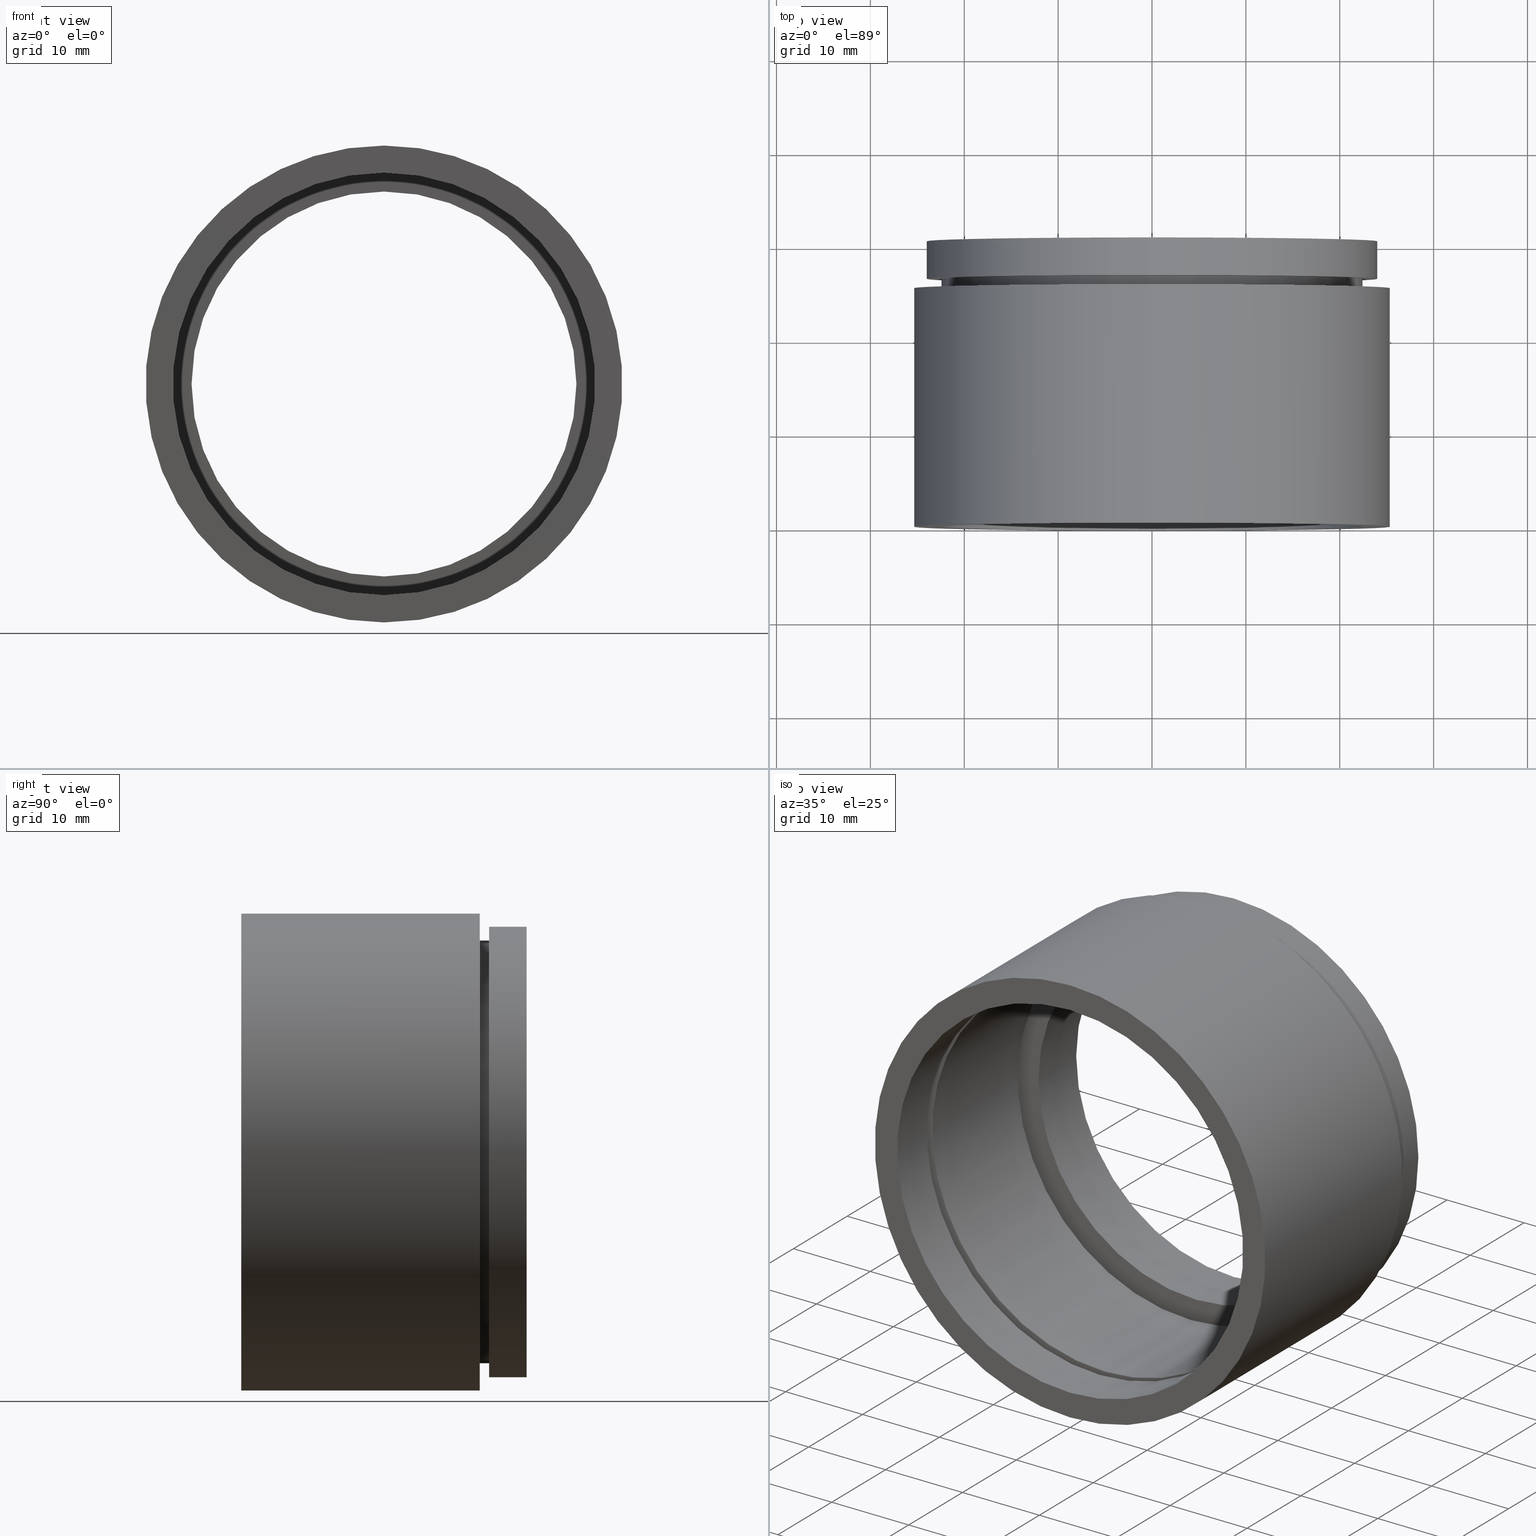
[diagram: canonical four-view strip — front | top / right | iso, engineering-drawing reading convention]
A machine part, canonical four-view strip (front | top / right | iso — engineering-drawing reading convention). The complete STEP part file that produces these views, byte-faithful:
ISO-10303-21;
HEADER;
FILE_DESCRIPTION (( 'STEP AP214' ),
    '1' );
FILE_NAME ('503014.STEP',
    '2019-09-04T09:28:39',
    ( '' ),
    ( '' ),
    'SwSTEP 2.0',
    'SolidWorks 2016',
    '' );
FILE_SCHEMA (( 'AUTOMOTIVE_DESIGN' ));
ENDSEC;

DATA;
#1 = FACE_OUTER_BOUND ( 'NONE', #154, .T. ) ;
#2 = EDGE_LOOP ( 'NONE', ( #57, #266, #693, #347 ) ) ;
#3 = PLANE ( 'NONE',  #713 ) ;
#4 = EDGE_LOOP ( 'NONE', ( #195, #783, #733, #254 ) ) ;
#5 = DIRECTION ( 'NONE',  ( -0.0000000000000000000, 1.000000000000000000, -0.0000000000000000000 ) ) ;
#6 = SURFACE_STYLE_FILL_AREA ( #567 ) ;
#7 = ORIENTED_EDGE ( 'NONE', *, *, #262, .F. ) ;
#8 = VERTEX_POINT ( 'NONE', #685 ) ;
#9 = DIRECTION ( 'NONE',  ( -0.0000000000000000000, 1.000000000000000000, 0.0000000000000000000 ) ) ;
#10 = CARTESIAN_POINT ( 'NONE',  ( 0.0000000000000000000, 23.39999999999997700, 20.50000000000001800 ) ) ;
#11 = CARTESIAN_POINT ( 'NONE',  ( 2.755455298081547100E-015, 161.3761669434274500, -22.50000000000002100 ) ) ;
#12 = AXIS2_PLACEMENT_3D ( 'NONE', #731, #175, #245 ) ;
#13 = EDGE_CURVE ( 'NONE', #367, #162, #784, .T. ) ;
#14 = CARTESIAN_POINT ( 'NONE',  ( 0.0000000000000000000, -2.775557561562891400E-014, 25.40000000000002000 ) ) ;
#15 = DIRECTION ( 'NONE',  ( 0.0000000000000000000, 0.0000000000000000000, 1.000000000000000000 ) ) ;
#16 = UNCERTAINTY_MEASURE_WITH_UNIT (LENGTH_MEASURE( 1.000000000000000100E-005 ), #429, 'distance_accuracy_value', 'NONE');
#17 = SURFACE_STYLE_USAGE ( .BOTH. , #778 ) ;
#18 = LINE ( 'NONE', #364, #501 ) ;
#19 = ORIENTED_EDGE ( 'NONE', *, *, #787, .F. ) ;
#20 = CARTESIAN_POINT ( 'NONE',  ( 22.50000000000002100, 22.39999999999997400, 0.0000000000000000000 ) ) ;
#21 = CIRCLE ( 'NONE', #321, 24.00000000000001400 ) ;
#22 = VERTEX_POINT ( 'NONE', #611 ) ;
#23 = ORIENTED_EDGE ( 'NONE', *, *, #534, .F. ) ;
#24 = CYLINDRICAL_SURFACE ( 'NONE', #412, 22.49999999999989700 ) ;
#25 = FILL_AREA_STYLE ('',( #461 ) ) ;
#26 = AXIS2_PLACEMENT_3D ( 'NONE', #234, #741, #426 ) ;
#27 = DIRECTION ( 'NONE',  ( 0.0000000000000000000, 0.0000000000000000000, 1.000000000000000000 ) ) ;
#28 = CARTESIAN_POINT ( 'NONE',  ( 2.755455298081547100E-015, 22.39999999999997700, -22.50000000000002100 ) ) ;
#29 = ORIENTED_EDGE ( 'NONE', *, *, #565, .T. ) ;
#30 = CARTESIAN_POINT ( 'NONE',  ( 0.0000000000000000000, 30.39999999999998400, 0.0000000000000000000 ) ) ;
#31 = FACE_OUTER_BOUND ( 'NONE', #300, .T. ) ;
#32 = EDGE_CURVE ( 'NONE', #367, #240, #649, .T. ) ;
#33 = MECHANICAL_DESIGN_GEOMETRIC_PRESENTATION_REPRESENTATION (  '', ( #331 ), #432 ) ;
#34 = CIRCLE ( 'NONE', #106, 20.50000000000001400 ) ;
#35 = EDGE_CURVE ( 'NONE', #54, #797, #493, .T. ) ;
#36 = DIRECTION ( 'NONE',  ( 0.0000000000000000000, 0.0000000000000000000, 1.000000000000000000 ) ) ;
#37 = FACE_OUTER_BOUND ( 'NONE', #436, .T. ) ;
#38 = VERTEX_POINT ( 'NONE', #311 ) ;
#39 = CARTESIAN_POINT ( 'NONE',  ( 0.0000000000000000000, 161.3761669434274500, 0.0000000000000000000 ) ) ;
#40 = CYLINDRICAL_SURFACE ( 'NONE', #356, 25.40000000000001300 ) ;
#41 = ORIENTED_EDGE ( 'NONE', *, *, #499, .F. ) ;
#42 = ORIENTED_EDGE ( 'NONE', *, *, #652, .F. ) ;
#43 = PLANE ( 'NONE',  #65 ) ;
#44 = CYLINDRICAL_SURFACE ( 'NONE', #275, 22.49999999999989700 ) ;
#45 = DIRECTION ( 'NONE',  ( 0.0000000000000000000, -1.000000000000000000, 0.0000000000000000000 ) ) ;
#46 = ORIENTED_EDGE ( 'NONE', *, *, #405, .F. ) ;
#47 = ORIENTED_EDGE ( 'NONE', *, *, #405, .T. ) ;
#48 = DIRECTION ( 'NONE',  ( 0.0000000000000000000, 0.0000000000000000000, 1.000000000000000000 ) ) ;
#49 = STYLED_ITEM ( 'NONE', ( #97 ), #545 ) ;
#50 = EDGE_CURVE ( 'NONE', #421, #8, #34, .T. ) ;
#51 = AXIS2_PLACEMENT_3D ( 'NONE', #518, #68, #144 ) ;
#52 = ORIENTED_EDGE ( 'NONE', *, *, #489, .F. ) ;
#53 = FACE_OUTER_BOUND ( 'NONE', #281, .T. ) ;
#54 = VERTEX_POINT ( 'NONE', #127 ) ;
#55 = CARTESIAN_POINT ( 'NONE',  ( 25.40000000000002000, -1.460226537307042600E-014, 0.0000000000000000000 ) ) ;
#56 = PRODUCT ( '503014', '503014', '', ( #340 ) ) ;
#57 = ORIENTED_EDGE ( 'NONE', *, *, #129, .F. ) ;
#58 = AXIS2_PLACEMENT_3D ( 'NONE', #679, #315, #614 ) ;
#59 = DIRECTION ( 'NONE',  ( -0.0000000000000000000, 1.000000000000000000, -0.0000000000000000000 ) ) ;
#60 = ORIENTED_EDGE ( 'NONE', *, *, #530, .F. ) ;
#61 = CARTESIAN_POINT ( 'NONE',  ( 0.0000000000000000000, 5.499999999999976900, 0.0000000000000000000 ) ) ;
#62 = EDGE_LOOP ( 'NONE', ( #378, #472, #90, #192 ) ) ;
#63 = DIRECTION ( 'NONE',  ( -0.0000000000000000000, 1.000000000000000000, -0.0000000000000000000 ) ) ;
#64 = CYLINDRICAL_SURFACE ( 'NONE', #371, 24.00000000000001400 ) ;
#65 = AXIS2_PLACEMENT_3D ( 'NONE', #363, #45, #113 ) ;
#66 = DIRECTION ( 'NONE',  ( 0.0000000000000000000, 0.0000000000000000000, 1.000000000000000000 ) ) ;
#67 = CYLINDRICAL_SURFACE ( 'NONE', #746, 22.50000000000002100 ) ;
#68 = DIRECTION ( 'NONE',  ( -0.0000000000000000000, 1.000000000000000000, -0.0000000000000000000 ) ) ;
#69 = AXIS2_PLACEMENT_3D ( 'NONE', #700, #768, #624 ) ;
#70 = CARTESIAN_POINT ( 'NONE',  ( 0.0000000000000000000, 161.3761669434274500, 0.0000000000000000000 ) ) ;
#71 = CARTESIAN_POINT ( 'NONE',  ( 0.0000000000000000000, 26.39999999999997700, 24.00000000000001400 ) ) ;
#72 = MECHANICAL_DESIGN_GEOMETRIC_PRESENTATION_REPRESENTATION (  '', ( #148 ), #760 ) ;
#73 = LINE ( 'NONE', #200, #721 ) ;
#74 = CARTESIAN_POINT ( 'NONE',  ( 0.0000000000000000000, 161.3761669434274500, 25.40000000000001300 ) ) ;
#75 = EDGE_CURVE ( 'NONE', #54, #359, #591, .T. ) ;
#76 = STYLED_ITEM ( 'NONE', ( #98 ), #419 ) ;
#77 = DIRECTION ( 'NONE',  ( -0.0000000000000000000, 1.000000000000000000, -0.0000000000000000000 ) ) ;
#78 = DIRECTION ( 'NONE',  ( 0.0000000000000000000, 0.0000000000000000000, 1.000000000000000000 ) ) ;
#79 = DIRECTION ( 'NONE',  ( 0.0000000000000000000, 0.0000000000000000000, 1.000000000000000000 ) ) ;
#80 = DIRECTION ( 'NONE',  ( -0.0000000000000000000, 1.000000000000000000, -0.0000000000000000000 ) ) ;
#81 = EDGE_CURVE ( 'NONE', #431, #755, #163, .T. ) ;
#82 = DIRECTION ( 'NONE',  ( 0.0000000000000000000, -1.000000000000000000, 0.0000000000000000000 ) ) ;
#83 = FACE_BOUND ( 'NONE', #490, .T. ) ;
#84 = CARTESIAN_POINT ( 'NONE',  ( 0.0000000000000000000, 161.3761669434274500, 0.0000000000000000000 ) ) ;
#85 = SURFACE_STYLE_USAGE ( .BOTH. , #403 ) ;
#86 = ORIENTED_EDGE ( 'NONE', *, *, #740, .T. ) ;
#87 =( NAMED_UNIT ( * ) PLANE_ANGLE_UNIT ( ) SI_UNIT ( $, .RADIAN. ) );
#88 = CARTESIAN_POINT ( 'NONE',  ( 0.0000000000000000000, -2.775557561562891400E-014, 0.0000000000000000000 ) ) ;
#89 = DIRECTION ( 'NONE',  ( 1.000000000000000000, 0.0000000000000000000, 0.0000000000000000000 ) ) ;
#90 = ORIENTED_EDGE ( 'NONE', *, *, #443, .F. ) ;
#91 = CARTESIAN_POINT ( 'NONE',  ( 2.755455298081532600E-015, 25.39999999999997700, -22.49999999999989700 ) ) ;
#92 = FILL_AREA_STYLE_COLOUR ( '', #799 ) ;
#93 = AXIS2_PLACEMENT_3D ( 'NONE', #360, #181, #479 ) ;
#94 = EDGE_LOOP ( 'NONE', ( #411, #222, #550, #805 ) ) ;
#95 = EDGE_CURVE ( 'NONE', #689, #691, #743, .T. ) ;
#96 = CARTESIAN_POINT ( 'NONE',  ( 0.0000000000000000000, 25.39999999999997700, 22.49999999999989700 ) ) ;
#97 = PRESENTATION_STYLE_ASSIGNMENT (( #807 ) ) ;
#98 = PRESENTATION_STYLE_ASSIGNMENT (( #355 ) ) ;
#99 =( GEOMETRIC_REPRESENTATION_CONTEXT ( 3 ) GLOBAL_UNCERTAINTY_ASSIGNED_CONTEXT ( ( #456 ) ) GLOBAL_UNIT_ASSIGNED_CONTEXT ( ( #406, #643, #276 ) ) REPRESENTATION_CONTEXT ( 'NONE', 'WORKASPACE' ) );
#100 = UNCERTAINTY_MEASURE_WITH_UNIT (LENGTH_MEASURE( 1.000000000000000100E-005 ), #459, 'distance_accuracy_value', 'NONE');
#101 = ADVANCED_FACE ( 'NONE', ( #537 ), #44, .T. ) ;
#102 =( NAMED_UNIT ( * ) SI_UNIT ( $, .STERADIAN. ) SOLID_ANGLE_UNIT ( ) );
#103 = DIRECTION ( 'NONE',  ( -0.0000000000000000000, 1.000000000000000000, -0.0000000000000000000 ) ) ;
#104 = DIRECTION ( 'NONE',  ( -0.0000000000000000000, 1.000000000000000000, -0.0000000000000000000 ) ) ;
#105 = ADVANCED_FACE ( 'NONE', ( #83, #729 ), #694, .F. ) ;
#106 = AXIS2_PLACEMENT_3D ( 'NONE', #762, #393, #564 ) ;
#107 = DIRECTION ( 'NONE',  ( 0.0000000000000000000, 0.0000000000000000000, 1.000000000000000000 ) ) ;
#108 = VERTEX_POINT ( 'NONE', #10 ) ;
#109 = DIRECTION ( 'NONE',  ( -0.0000000000000000000, 1.000000000000000000, -0.0000000000000000000 ) ) ;
#110 = EDGE_LOOP ( 'NONE', ( #423, #606 ) ) ;
#111 = AXIS2_PLACEMENT_3D ( 'NONE', #256, #138, #690 ) ;
#112 = ADVANCED_FACE ( 'NONE', ( #31 ), #24, .T. ) ;
#113 = DIRECTION ( 'NONE',  ( 0.0000000000000000000, -0.0000000000000000000, -1.000000000000000000 ) ) ;
#114 = PRODUCT_DEFINITION_CONTEXT ( 'detailed design', #580, 'design' ) ;
#115 = VECTOR ( 'NONE', #376, 1000.000000000000000 ) ;
#116 = DIRECTION ( 'NONE',  ( 0.0000000000000000000, 0.0000000000000000000, 1.000000000000000000 ) ) ;
#117 = ORIENTED_EDGE ( 'NONE', *, *, #517, .F. ) ;
#118 = EDGE_LOOP ( 'NONE', ( #505, #184 ) ) ;
#119 = AXIS2_PLACEMENT_3D ( 'NONE', #790, #724, #793 ) ;
#120 = DIRECTION ( 'NONE',  ( -0.0000000000000000000, 1.000000000000000000, -0.0000000000000000000 ) ) ;
#121 = ORIENTED_EDGE ( 'NONE', *, *, #476, .F. ) ;
#122 = AXIS2_PLACEMENT_3D ( 'NONE', #772, #264, #442 ) ;
#123 = AXIS2_PLACEMENT_3D ( 'NONE', #708, #27, #89 ) ;
#124 = EDGE_CURVE ( 'NONE', #108, #747, #228, .T. ) ;
#125 = FACE_OUTER_BOUND ( 'NONE', #223, .T. ) ;
#126 = ORIENTED_EDGE ( 'NONE', *, *, #50, .F. ) ;
#127 = CARTESIAN_POINT ( 'NONE',  ( 2.755455298081547100E-015, 6.499999999999977800, -22.50000000000002100 ) ) ;
#128 = FACE_OUTER_BOUND ( 'NONE', #324, .T. ) ;
#129 = EDGE_CURVE ( 'NONE', #322, #687, #73, .T. ) ;
#130 = DIRECTION ( 'NONE',  ( -0.0000000000000000000, 1.000000000000000000, 0.0000000000000000000 ) ) ;
#131 = ADVANCED_BREP_SHAPE_REPRESENTATION ( '503014', ( #272, #123 ), #99 ) ;
#132 = ORIENTED_EDGE ( 'NONE', *, *, #336, .F. ) ;
#133 = SHAPE_DEFINITION_REPRESENTATION ( #673, #131 ) ;
#134 = EDGE_LOOP ( 'NONE', ( #202, #625 ) ) ;
#135 = FACE_BOUND ( 'NONE', #645, .T. ) ;
#136 = ORIENTED_EDGE ( 'NONE', *, *, #95, .T. ) ;
#137 = ORIENTED_EDGE ( 'NONE', *, *, #124, .F. ) ;
#138 = DIRECTION ( 'NONE',  ( -0.0000000000000000000, 1.000000000000000000, -0.0000000000000000000 ) ) ;
#139 = CARTESIAN_POINT ( 'NONE',  ( 2.510525938252076100E-015, 23.39999999999997700, -20.50000000000001800 ) ) ;
#140 = STYLED_ITEM ( 'NONE', ( #265 ), #539 ) ;
#141 = EDGE_CURVE ( 'NONE', #714, #359, #327, .T. ) ;
#142 = SURFACE_SIDE_STYLE ('',( #6 ) ) ;
#143 = FACE_OUTER_BOUND ( 'NONE', #576, .T. ) ;
#144 = DIRECTION ( 'NONE',  ( 0.0000000000000000000, 0.0000000000000000000, 1.000000000000000000 ) ) ;
#145 = DIRECTION ( 'NONE',  ( -0.0000000000000000000, 1.000000000000000000, -0.0000000000000000000 ) ) ;
#146 = LINE ( 'NONE', #344, #251 ) ;
#147 = CARTESIAN_POINT ( 'NONE',  ( 2.939152317953649500E-015, 161.3761669434274500, -24.00000000000001400 ) ) ;
#148 = STYLED_ITEM ( 'NONE', ( #631 ), #751 ) ;
#149 = CARTESIAN_POINT ( 'NONE',  ( 0.0000000000000000000, 26.39999999999997700, 0.0000000000000000000 ) ) ;
#150 = CARTESIAN_POINT ( 'NONE',  ( 3.110602869834278000E-015, 25.39999999999997700, -25.40000000000000900 ) ) ;
#151 = DIRECTION ( 'NONE',  ( 0.0000000000000000000, 0.0000000000000000000, 1.000000000000000000 ) ) ;
#152 = LINE ( 'NONE', #491, #810 ) ;
#153 = ORIENTED_EDGE ( 'NONE', *, *, #13, .T. ) ;
#154 = EDGE_LOOP ( 'NONE', ( #121, #7 ) ) ;
#155 = DIRECTION ( 'NONE',  ( -0.0000000000000000000, 1.000000000000000000, -0.0000000000000000000 ) ) ;
#156 = AXIS2_PLACEMENT_3D ( 'NONE', #678, #500, #252 ) ;
#157 = APPLICATION_PROTOCOL_DEFINITION ( 'draft international standard', 'automotive_design', 1998, #527 ) ;
#158 = CIRCLE ( 'NONE', #695, 23.49999999999986500 ) ;
#159 = EDGE_LOOP ( 'NONE', ( #304, #618 ) ) ;
#160 = SURFACE_STYLE_USAGE ( .BOTH. , #142 ) ;
#161 = AXIS2_PLACEMENT_3D ( 'NONE', #676, #103, #601 ) ;
#162 = VERTEX_POINT ( 'NONE', #757 ) ;
#163 = LINE ( 'NONE', #193, #391 ) ;
#164 = CARTESIAN_POINT ( 'NONE',  ( 0.0000000000000000000, 23.39999999999997700, 0.0000000000000000000 ) ) ;
#165 =( GEOMETRIC_REPRESENTATION_CONTEXT ( 3 ) GLOBAL_UNCERTAINTY_ASSIGNED_CONTEXT ( ( #418 ) ) GLOBAL_UNIT_ASSIGNED_CONTEXT ( ( #413, #663, #286 ) ) REPRESENTATION_CONTEXT ( 'NONE', 'WORKASPACE' ) );
#166 = AXIS2_PLACEMENT_3D ( 'NONE', #20, #82, #647 ) ;
#167 = SURFACE_SIDE_STYLE ('',( #705 ) ) ;
#168 = CIRCLE ( 'NONE', #366, 24.00000000000001400 ) ;
#169 = MECHANICAL_DESIGN_GEOMETRIC_PRESENTATION_REPRESENTATION (  '', ( #280 ), #656 ) ;
#170 = EDGE_CURVE ( 'NONE', #804, #259, #561, .T. ) ;
#171 = FACE_OUTER_BOUND ( 'NONE', #241, .T. ) ;
#172 = UNCERTAINTY_MEASURE_WITH_UNIT (LENGTH_MEASURE( 1.000000000000000100E-005 ), #293, 'distance_accuracy_value', 'NONE');
#173 = DIRECTION ( 'NONE',  ( 0.0000000000000000000, 0.0000000000000000000, 1.000000000000000000 ) ) ;
#174 = CARTESIAN_POINT ( 'NONE',  ( 2.510525938252075700E-015, 30.39999999999998400, -20.50000000000001400 ) ) ;
#175 = DIRECTION ( 'NONE',  ( -0.0000000000000000000, 1.000000000000000000, 0.0000000000000000000 ) ) ;
#176 = CIRCLE ( 'NONE', #802, 22.49999999999989700 ) ;
#177 = ORIENTED_EDGE ( 'NONE', *, *, #570, .T. ) ;
#178 = ADVANCED_FACE ( 'NONE', ( #510 ), #666, .F. ) ;
#179 = CARTESIAN_POINT ( 'NONE',  ( 0.0000000000000000000, -2.775557561562891400E-014, 22.50000000000002100 ) ) ;
#180 = PRESENTATION_STYLE_ASSIGNMENT (( #17 ) ) ;
#181 = DIRECTION ( 'NONE',  ( -0.0000000000000000000, 1.000000000000000000, -0.0000000000000000000 ) ) ;
#182 = LINE ( 'NONE', #379, #780 ) ;
#183 = DIRECTION ( 'NONE',  ( -0.0000000000000000000, 1.000000000000000000, -0.0000000000000000000 ) ) ;
#184 = ORIENTED_EDGE ( 'NONE', *, *, #336, .T. ) ;
#185 = DIRECTION ( 'NONE',  ( -0.0000000000000000000, 1.000000000000000000, -0.0000000000000000000 ) ) ;
#186 =( LENGTH_UNIT ( ) NAMED_UNIT ( * ) SI_UNIT ( .MILLI., .METRE. ) );
#187 = DIRECTION ( 'NONE',  ( -0.0000000000000000000, 1.000000000000000000, -0.0000000000000000000 ) ) ;
#188 = CIRCLE ( 'NONE', #806, 24.00000000000001400 ) ;
#189 = COLOUR_RGB ( '',1.000000000000000000, 1.000000000000000000, 1.000000000000000000 ) ;
#190 = EDGE_CURVE ( 'NONE', #689, #431, #354, .T. ) ;
#191 = AXIS2_PLACEMENT_3D ( 'NONE', #581, #396, #217 ) ;
#192 = ORIENTED_EDGE ( 'NONE', *, *, #95, .F. ) ;
#193 = CARTESIAN_POINT ( 'NONE',  ( 3.110602869834278400E-015, 161.3761669434274500, -25.40000000000001300 ) ) ;
#194 = FACE_BOUND ( 'NONE', #317, .T. ) ;
#195 = ORIENTED_EDGE ( 'NONE', *, *, #75, .F. ) ;
#196 = ORIENTED_EDGE ( 'NONE', *, *, #541, .T. ) ;
#197 = CARTESIAN_POINT ( 'NONE',  ( 0.0000000000000000000, 5.499999999999976900, 0.0000000000000000000 ) ) ;
#198 = CARTESIAN_POINT ( 'NONE',  ( 25.40000000000000900, 25.39999999999998400, 0.0000000000000000000 ) ) ;
#199 = MECHANICAL_DESIGN_GEOMETRIC_PRESENTATION_REPRESENTATION (  '', ( #140 ), #786 ) ;
#200 = CARTESIAN_POINT ( 'NONE',  ( 2.755455298081532600E-015, 161.3761669434274500, -22.49999999999989700 ) ) ;
#201 = SURFACE_STYLE_FILL_AREA ( #737 ) ;
#202 = ORIENTED_EDGE ( 'NONE', *, *, #681, .T. ) ;
#203 = AXIS2_PLACEMENT_3D ( 'NONE', #477, #549, #302 ) ;
#204 = AXIS2_PLACEMENT_3D ( 'NONE', #268, #339, #78 ) ;
#205 = PLANE ( 'NONE',  #326 ) ;
#206 = PRODUCT_DEFINITION ( 'δ֪', '', #287, #114 ) ;
#207 = CARTESIAN_POINT ( 'NONE',  ( 0.0000000000000000000, 161.3761669434274500, 0.0000000000000000000 ) ) ;
#208 = DIRECTION ( 'NONE',  ( 0.0000000000000000000, -0.0000000000000000000, -1.000000000000000000 ) ) ;
#209 = EDGE_CURVE ( 'NONE', #797, #54, #449, .T. ) ;
#210 = ORIENTED_EDGE ( 'NONE', *, *, #787, .T. ) ;
#211 = DIRECTION ( 'NONE',  ( -0.0000000000000000000, 1.000000000000000000, -0.0000000000000000000 ) ) ;
#212 = FACE_BOUND ( 'NONE', #775, .T. ) ;
#213 = DIRECTION ( 'NONE',  ( -0.0000000000000000000, 1.000000000000000000, -0.0000000000000000000 ) ) ;
#214 = FACE_OUTER_BOUND ( 'NONE', #62, .T. ) ;
#215 = DIRECTION ( 'NONE',  ( 0.0000000000000000000, 0.0000000000000000000, 1.000000000000000000 ) ) ;
#216 = ORIENTED_EDGE ( 'NONE', *, *, #609, .T. ) ;
#217 = DIRECTION ( 'NONE',  ( 0.0000000000000000000, 0.0000000000000000000, 1.000000000000000000 ) ) ;
#218 = DIRECTION ( 'NONE',  ( 0.0000000000000000000, 0.0000000000000000000, 1.000000000000000000 ) ) ;
#219 =( NAMED_UNIT ( * ) PLANE_ANGLE_UNIT ( ) SI_UNIT ( $, .RADIAN. ) );
#220 = CARTESIAN_POINT ( 'NONE',  ( 0.0000000000000000000, 161.3761669434274500, 0.0000000000000000000 ) ) ;
#221 = DIRECTION ( 'NONE',  ( 0.0000000000000000000, 0.0000000000000000000, 1.000000000000000000 ) ) ;
#222 = ORIENTED_EDGE ( 'NONE', *, *, #517, .T. ) ;
#223 = EDGE_LOOP ( 'NONE', ( #258, #589, #638, #52 ) ) ;
#224 =( NAMED_UNIT ( * ) PLANE_ANGLE_UNIT ( ) SI_UNIT ( $, .RADIAN. ) );
#225 = VECTOR ( 'NONE', #77, 1000.000000000000000 ) ;
#226 = CARTESIAN_POINT ( 'NONE',  ( 0.0000000000000000000, 5.499999999999976900, 0.0000000000000000000 ) ) ;
#227 = EDGE_CURVE ( 'NONE', #38, #289, #416, .T. ) ;
#228 = CIRCLE ( 'NONE', #285, 20.50000000000001800 ) ;
#229 = SURFACE_SIDE_STYLE ('',( #610 ) ) ;
#230 = ADVANCED_FACE ( 'NONE', ( #212, #128 ), #712, .F. ) ;
#231 = SURFACE_STYLE_FILL_AREA ( #600 ) ;
#232 = ORIENTED_EDGE ( 'NONE', *, *, #250, .T. ) ;
#233 = CARTESIAN_POINT ( 'NONE',  ( 0.0000000000000000000, 26.39999999999997700, 0.0000000000000000000 ) ) ;
#234 = CARTESIAN_POINT ( 'NONE',  ( 0.0000000000000000000, 30.39999999999998400, 0.0000000000000000000 ) ) ;
#235 = EDGE_LOOP ( 'NONE', ( #196, #548 ) ) ;
#236 = DIRECTION ( 'NONE',  ( 0.0000000000000000000, 0.0000000000000000000, 1.000000000000000000 ) ) ;
#237 = AXIS2_PLACEMENT_3D ( 'NONE', #198, #698, #208 ) ;
#238 = SURFACE_SIDE_STYLE ('',( #231 ) ) ;
#239 = CARTESIAN_POINT ( 'NONE',  ( 0.0000000000000000000, 22.39999999999997700, 0.0000000000000000000 ) ) ;
#240 = VERTEX_POINT ( 'NONE', #385 ) ;
#241 = EDGE_LOOP ( 'NONE', ( #716, #137, #428, #452 ) ) ;
#242 = CARTESIAN_POINT ( 'NONE',  ( 2.939152317953649500E-015, 26.39999999999997700, -24.00000000000001400 ) ) ;
#243 = ADVANCED_FACE ( 'NONE', ( #474 ), #748, .F. ) ;
#244 = STYLED_ITEM ( 'NONE', ( #615 ), #495 ) ;
#245 = DIRECTION ( 'NONE',  ( 0.0000000000000000000, 0.0000000000000000000, 1.000000000000000000 ) ) ;
#246 =( GEOMETRIC_REPRESENTATION_CONTEXT ( 3 ) GLOBAL_UNCERTAINTY_ASSIGNED_CONTEXT ( ( #314 ) ) GLOBAL_UNIT_ASSIGNED_CONTEXT ( ( #468, #224, #785 ) ) REPRESENTATION_CONTEXT ( 'NONE', 'WORKASPACE' ) );
#247 = EDGE_LOOP ( 'NONE', ( #636, #46 ) ) ;
#248 = CARTESIAN_POINT ( 'NONE',  ( 0.0000000000000000000, 161.3761669434274500, 22.50000000000002100 ) ) ;
#249 = AXIS2_PLACEMENT_3D ( 'NONE', #761, #767, #574 ) ;
#250 = EDGE_CURVE ( 'NONE', #747, #421, #654, .T. ) ;
#251 = VECTOR ( 'NONE', #773, 1000.000000000000000 ) ;
#252 = DIRECTION ( 'NONE',  ( 0.0000000000000000000, 0.0000000000000000000, 1.000000000000000000 ) ) ;
#253 = EDGE_LOOP ( 'NONE', ( #132, #553, #177, #370 ) ) ;
#254 = ORIENTED_EDGE ( 'NONE', *, *, #141, .T. ) ;
#255 = DIRECTION ( 'NONE',  ( -0.0000000000000000000, 1.000000000000000000, -0.0000000000000000000 ) ) ;
#256 = CARTESIAN_POINT ( 'NONE',  ( 0.0000000000000000000, 22.39999999999997700, 0.0000000000000000000 ) ) ;
#257 = FACE_OUTER_BOUND ( 'NONE', #110, .T. ) ;
#258 = ORIENTED_EDGE ( 'NONE', *, *, #35, .F. ) ;
#259 = VERTEX_POINT ( 'NONE', #529 ) ;
#260 = SURFACE_STYLE_USAGE ( .BOTH. , #334 ) ;
#261 = CARTESIAN_POINT ( 'NONE',  ( 0.0000000000000000000, 6.499999999999977800, 0.0000000000000000000 ) ) ;
#262 = EDGE_CURVE ( 'NONE', #525, #585, #21, .T. ) ;
#263 = DIRECTION ( 'NONE',  ( -0.0000000000000000000, 1.000000000000000000, -0.0000000000000000000 ) ) ;
#264 = DIRECTION ( 'NONE',  ( -0.0000000000000000000, 1.000000000000000000, -0.0000000000000000000 ) ) ;
#265 = PRESENTATION_STYLE_ASSIGNMENT (( #551 ) ) ;
#266 = ORIENTED_EDGE ( 'NONE', *, *, #534, .T. ) ;
#267 = CIRCLE ( 'NONE', #677, 23.49999999999986500 ) ;
#268 = CARTESIAN_POINT ( 'NONE',  ( 0.0000000000000000000, 22.39999999999997700, 0.0000000000000000000 ) ) ;
#269 = CYLINDRICAL_SURFACE ( 'NONE', #744, 20.50000000000001800 ) ;
#270 = PRESENTATION_LAYER_ASSIGNMENT (  '', '', ( #148 ) ) ;
#271 = DIRECTION ( 'NONE',  ( -0.0000000000000000000, 1.000000000000000000, -0.0000000000000000000 ) ) ;
#272 = MANIFOLD_SOLID_BREP ( '��ת1', #346 ) ;
#273 = ORIENTED_EDGE ( 'NONE', *, *, #570, .F. ) ;
#274 =( NAMED_UNIT ( * ) SI_UNIT ( $, .STERADIAN. ) SOLID_ANGLE_UNIT ( ) );
#275 = AXIS2_PLACEMENT_3D ( 'NONE', #70, #255, #381 ) ;
#276 =( NAMED_UNIT ( * ) SI_UNIT ( $, .STERADIAN. ) SOLID_ANGLE_UNIT ( ) );
#277 = EDGE_LOOP ( 'NONE', ( #445, #283 ) ) ;
#278 = SURFACE_STYLE_FILL_AREA ( #623 ) ;
#279 = DIRECTION ( 'NONE',  ( -0.0000000000000000000, 1.000000000000000000, -0.0000000000000000000 ) ) ;
#280 = STYLED_ITEM ( 'NONE', ( #641 ), #728 ) ;
#281 = EDGE_LOOP ( 'NONE', ( #590, #47, #136, #558 ) ) ;
#282 = ORIENTED_EDGE ( 'NONE', *, *, #763, .F. ) ;
#283 = ORIENTED_EDGE ( 'NONE', *, *, #648, .T. ) ;
#284 = PRESENTATION_LAYER_ASSIGNMENT (  '', '', ( #244 ) ) ;
#285 = AXIS2_PLACEMENT_3D ( 'NONE', #509, #630, #702 ) ;
#286 =( NAMED_UNIT ( * ) SI_UNIT ( $, .STERADIAN. ) SOLID_ANGLE_UNIT ( ) );
#288 = COLOUR_RGB ( '',1.000000000000000000, 1.000000000000000000, 1.000000000000000000 ) ;
#287 = PRODUCT_DEFINITION_FORMATION_WITH_SPECIFIED_SOURCE ( '�κ�', '', #56, .NOT_KNOWN. ) ;
#289 = VERTEX_POINT ( 'NONE', #408 ) ;
#290 = EDGE_CURVE ( 'NONE', #465, #361, #628, .T. ) ;
#291 = CIRCLE ( 'NONE', #556, 24.00000000000001400 ) ;
#292 = CIRCLE ( 'NONE', #651, 22.50000000000002100 ) ;
#293 =( LENGTH_UNIT ( ) NAMED_UNIT ( * ) SI_UNIT ( .MILLI., .METRE. ) );
#294 = EDGE_CURVE ( 'NONE', #566, #22, #267, .T. ) ;
#295 = CARTESIAN_POINT ( 'NONE',  ( 0.0000000000000000000, 161.3761669434274500, 24.00000000000001400 ) ) ;
#296 = FILL_AREA_STYLE_COLOUR ( '', #635 ) ;
#297 = DIRECTION ( 'NONE',  ( -0.0000000000000000000, 1.000000000000000000, -0.0000000000000000000 ) ) ;
#298 = VERTEX_POINT ( 'NONE', #349 ) ;
#299 =( NAMED_UNIT ( * ) PLANE_ANGLE_UNIT ( ) SI_UNIT ( $, .RADIAN. ) );
#300 = EDGE_LOOP ( 'NONE', ( #216, #467, #506, #704 ) ) ;
#301 = CIRCLE ( 'NONE', #813, 22.50000000000002100 ) ;
#302 = DIRECTION ( 'NONE',  ( 0.0000000000000000000, 0.0000000000000000000, 1.000000000000000000 ) ) ;
#303 = ORIENTED_EDGE ( 'NONE', *, *, #124, .T. ) ;
#304 = ORIENTED_EDGE ( 'NONE', *, *, #696, .F. ) ;
#305 = SURFACE_SIDE_STYLE ('',( #594 ) ) ;
#306 = PRESENTATION_LAYER_ASSIGNMENT (  '', '', ( #331 ) ) ;
#307 = FILL_AREA_STYLE_COLOUR ( '', #288 ) ;
#308 = COLOUR_RGB ( '',1.000000000000000000, 1.000000000000000000, 1.000000000000000000 ) ;
#309 = EDGE_LOOP ( 'NONE', ( #758, #752, #153, #669 ) ) ;
#310 = EDGE_CURVE ( 'NONE', #108, #8, #146, .T. ) ;
#311 = CARTESIAN_POINT ( 'NONE',  ( 2.939152317953649500E-015, 23.39999999999997700, -24.00000000000001400 ) ) ;
#312 = FACE_OUTER_BOUND ( 'NONE', #620, .T. ) ;
#313 = CIRCLE ( 'NONE', #446, 22.49999999999989700 ) ;
#314 = UNCERTAINTY_MEASURE_WITH_UNIT (LENGTH_MEASURE( 1.000000000000000100E-005 ), #468, 'distance_accuracy_value', 'NONE');
#315 = DIRECTION ( 'NONE',  ( -0.0000000000000000000, 1.000000000000000000, -0.0000000000000000000 ) ) ;
#316 = AXIS2_PLACEMENT_3D ( 'NONE', #392, #211, #79 ) ;
#317 = EDGE_LOOP ( 'NONE', ( #483, #735 ) ) ;
#318 = SURFACE_STYLE_FILL_AREA ( #774 ) ;
#319 = ORIENTED_EDGE ( 'NONE', *, *, #476, .T. ) ;
#320 = DIRECTION ( 'NONE',  ( -0.0000000000000000000, 1.000000000000000000, -0.0000000000000000000 ) ) ;
#321 = AXIS2_PLACEMENT_3D ( 'NONE', #149, #400, #215 ) ;
#322 = VERTEX_POINT ( 'NONE', #91 ) ;
#323 = FILL_AREA_STYLE_COLOUR ( '', #602 ) ;
#324 = EDGE_LOOP ( 'NONE', ( #667, #604 ) ) ;
#325 = CARTESIAN_POINT ( 'NONE',  ( 0.0000000000000000000, 161.3761669434274500, 0.0000000000000000000 ) ) ;
#326 = AXIS2_PLACEMENT_3D ( 'NONE', #330, #9, #502 ) ;
#327 = CIRCLE ( 'NONE', #204, 22.50000000000002100 ) ;
#328 = DIRECTION ( 'NONE',  ( -0.0000000000000000000, 1.000000000000000000, -0.0000000000000000000 ) ) ;
#329 = STYLED_ITEM ( 'NONE', ( #375 ), #422 ) ;
#330 = CARTESIAN_POINT ( 'NONE',  ( 23.49999999999986500, 6.499999999999985800, 0.0000000000000000000 ) ) ;
#331 = STYLED_ITEM ( 'NONE', ( #180 ), #272 ) ;
#332 = CARTESIAN_POINT ( 'NONE',  ( 0.0000000000000000000, 161.3761669434274500, 24.00000000000001400 ) ) ;
#333 = PRODUCT_RELATED_PRODUCT_CATEGORY ( 'part', '', ( #56 ) ) ;
#334 = SURFACE_SIDE_STYLE ('',( #278 ) ) ;
#335 = LINE ( 'NONE', #512, #503 ) ;
#336 = EDGE_CURVE ( 'NONE', #240, #367, #776, .T. ) ;
#337 = CARTESIAN_POINT ( 'NONE',  ( 2.877919977996263800E-015, 5.499999999999976900, -23.49999999999986500 ) ) ;
#338 =( LENGTH_UNIT ( ) NAMED_UNIT ( * ) SI_UNIT ( .MILLI., .METRE. ) );
#339 = DIRECTION ( 'NONE',  ( -0.0000000000000000000, 1.000000000000000000, -0.0000000000000000000 ) ) ;
#340 = PRODUCT_CONTEXT ( 'NONE', #527, 'mechanical' ) ;
#341 = CARTESIAN_POINT ( 'NONE',  ( 0.0000000000000000000, 161.3761669434274500, 0.0000000000000000000 ) ) ;
#342 = CIRCLE ( 'NONE', #26, 20.50000000000001400 ) ;
#343 = ORIENTED_EDGE ( 'NONE', *, *, #141, .F. ) ;
#344 = CARTESIAN_POINT ( 'NONE',  ( 0.0000000000000000000, 161.3761669434274500, 20.50000000000001800 ) ) ;
#345 =( NAMED_UNIT ( * ) SI_UNIT ( $, .STERADIAN. ) SOLID_ANGLE_UNIT ( ) );
#346 = CLOSED_SHELL ( 'NONE', ( #112, #728, #495, #552, #545, #557, #243, #801, #105, #791, #671, #422, #481, #365, #725, #539, #230, #178, #497, #751, #738, #419, #478, #101 ) ) ;
#347 = ORIENTED_EDGE ( 'NONE', *, *, #812, .F. ) ;
#348 = SURFACE_SIDE_STYLE ('',( #769 ) ) ;
#349 = CARTESIAN_POINT ( 'NONE',  ( 2.755455298081547100E-015, 5.499999999999976900, -22.50000000000002100 ) ) ;
#350 = LINE ( 'NONE', #295, #560 ) ;
#351 = MECHANICAL_DESIGN_GEOMETRIC_PRESENTATION_REPRESENTATION (  '', ( #76 ), #593 ) ;
#352 = VECTOR ( 'NONE', #519, 1000.000000000000000 ) ;
#353 = CARTESIAN_POINT ( 'NONE',  ( 2.877919977996263800E-015, 6.499999999999977800, -23.49999999999986500 ) ) ;
#354 = CIRCLE ( 'NONE', #69, 25.40000000000002000 ) ;
#355 = SURFACE_STYLE_USAGE ( .BOTH. , #229 ) ;
#357 = COLOUR_RGB ( '',1.000000000000000000, 1.000000000000000000, 1.000000000000000000 ) ;
#356 = AXIS2_PLACEMENT_3D ( 'NONE', #341, #398, #15 ) ;
#358 = FACE_BOUND ( 'NONE', #118, .T. ) ;
#359 = VERTEX_POINT ( 'NONE', #28 ) ;
#360 = CARTESIAN_POINT ( 'NONE',  ( 0.0000000000000000000, 26.39999999999997700, 0.0000000000000000000 ) ) ;
#361 = VERTEX_POINT ( 'NONE', #464 ) ;
#362 = AXIS2_PLACEMENT_3D ( 'NONE', #715, #80, #650 ) ;
#363 = CARTESIAN_POINT ( 'NONE',  ( 22.50000000000002100, 5.499999999999985800, 0.0000000000000000000 ) ) ;
#364 = CARTESIAN_POINT ( 'NONE',  ( 2.877919977996263800E-015, 161.3761669434274500, -23.49999999999986500 ) ) ;
#365 = ADVANCED_FACE ( 'NONE', ( #684 ), #453, .F. ) ;
#366 = AXIS2_PLACEMENT_3D ( 'NONE', #239, #187, #236 ) ;
#367 = VERTEX_POINT ( 'NONE', #179 ) ;
#368 = SURFACE_SIDE_STYLE ('',( #201 ) ) ;
#369 = FACE_BOUND ( 'NONE', #742, .T. ) ;
#370 = ORIENTED_EDGE ( 'NONE', *, *, #13, .F. ) ;
#371 = AXIS2_PLACEMENT_3D ( 'NONE', #657, #658, #540 ) ;
#372 = AXIS2_PLACEMENT_3D ( 'NONE', #164, #279, #404 ) ;
#373 = EDGE_CURVE ( 'NONE', #162, #298, #301, .T. ) ;
#374 = ORIENTED_EDGE ( 'NONE', *, *, #373, .F. ) ;
#375 = PRESENTATION_STYLE_ASSIGNMENT (( #596 ) ) ;
#376 = DIRECTION ( 'NONE',  ( -0.0000000000000000000, 1.000000000000000000, -0.0000000000000000000 ) ) ;
#377 = CYLINDRICAL_SURFACE ( 'NONE', #249, 25.40000000000001300 ) ;
#378 = ORIENTED_EDGE ( 'NONE', *, *, #190, .T. ) ;
#379 = CARTESIAN_POINT ( 'NONE',  ( 0.0000000000000000000, 161.3761669434274500, 23.49999999999986500 ) ) ;
#380 = DIRECTION ( 'NONE',  ( -0.0000000000000000000, 1.000000000000000000, -0.0000000000000000000 ) ) ;
#381 = DIRECTION ( 'NONE',  ( 0.0000000000000000000, 0.0000000000000000000, 1.000000000000000000 ) ) ;
#382 = EDGE_LOOP ( 'NONE', ( #430, #60, #439, #86 ) ) ;
#383 = FACE_OUTER_BOUND ( 'NONE', #4, .T. ) ;
#384 = DIRECTION ( 'NONE',  ( 0.0000000000000000000, 0.0000000000000000000, 1.000000000000000000 ) ) ;
#385 = CARTESIAN_POINT ( 'NONE',  ( 2.755455298081547100E-015, -2.775557561562891400E-014, -22.50000000000002100 ) ) ;
#386 = LINE ( 'NONE', #332, #225 ) ;
#387 = AXIS2_PLACEMENT_3D ( 'NONE', #84, #155, #642 ) ;
#388 = DIRECTION ( 'NONE',  ( -0.0000000000000000000, 1.000000000000000000, -0.0000000000000000000 ) ) ;
#389 =( NAMED_UNIT ( * ) PLANE_ANGLE_UNIT ( ) SI_UNIT ( $, .RADIAN. ) );
#390 = ORIENTED_EDGE ( 'NONE', *, *, #681, .F. ) ;
#391 = VECTOR ( 'NONE', #455, 1000.000000000000000 ) ;
#392 = CARTESIAN_POINT ( 'NONE',  ( 0.0000000000000000000, 22.39999999999997700, 0.0000000000000000000 ) ) ;
#393 = DIRECTION ( 'NONE',  ( -0.0000000000000000000, 1.000000000000000000, -0.0000000000000000000 ) ) ;
#394 = CIRCLE ( 'NONE', #119, 25.40000000000000900 ) ;
#395 = ORIENTED_EDGE ( 'NONE', *, *, #415, .F. ) ;
#396 = DIRECTION ( 'NONE',  ( -0.0000000000000000000, 1.000000000000000000, -0.0000000000000000000 ) ) ;
#397 = AXIS2_PLACEMENT_3D ( 'NONE', #528, #777, #646 ) ;
#398 = DIRECTION ( 'NONE',  ( -0.0000000000000000000, 1.000000000000000000, -0.0000000000000000000 ) ) ;
#399 = CIRCLE ( 'NONE', #498, 20.50000000000001800 ) ;
#400 = DIRECTION ( 'NONE',  ( -0.0000000000000000000, 1.000000000000000000, -0.0000000000000000000 ) ) ;
#401 = VERTEX_POINT ( 'NONE', #96 ) ;
#402 = DIRECTION ( 'NONE',  ( 0.0000000000000000000, 0.0000000000000000000, 1.000000000000000000 ) ) ;
#403 = SURFACE_SIDE_STYLE ('',( #318 ) ) ;
#404 = DIRECTION ( 'NONE',  ( 0.0000000000000000000, 0.0000000000000000000, 1.000000000000000000 ) ) ;
#405 = EDGE_CURVE ( 'NONE', #431, #689, #521, .T. ) ;
#406 =( LENGTH_UNIT ( ) NAMED_UNIT ( * ) SI_UNIT ( .MILLI., .METRE. ) );
#407 = ORIENTED_EDGE ( 'NONE', *, *, #565, .F. ) ;
#408 = CARTESIAN_POINT ( 'NONE',  ( 0.0000000000000000000, 23.39999999999997700, 24.00000000000001400 ) ) ;
#409 = PRESENTATION_LAYER_ASSIGNMENT (  '', '', ( #280 ) ) ;
#410 = MECHANICAL_DESIGN_GEOMETRIC_PRESENTATION_REPRESENTATION (  '', ( #329 ), #165 ) ;
#411 = ORIENTED_EDGE ( 'NONE', *, *, #294, .F. ) ;
#412 = AXIS2_PLACEMENT_3D ( 'NONE', #325, #516, #750 ) ;
#413 =( LENGTH_UNIT ( ) NAMED_UNIT ( * ) SI_UNIT ( .MILLI., .METRE. ) );
#414 = CARTESIAN_POINT ( 'NONE',  ( 0.0000000000000000000, -2.775557561562891400E-014, 0.0000000000000000000 ) ) ;
#415 = EDGE_CURVE ( 'NONE', #259, #804, #291, .T. ) ;
#416 = CIRCLE ( 'NONE', #372, 24.00000000000001400 ) ;
#417 = CYLINDRICAL_SURFACE ( 'NONE', #161, 23.49999999999986500 ) ;
#418 = UNCERTAINTY_MEASURE_WITH_UNIT (LENGTH_MEASURE( 1.000000000000000100E-005 ), #413, 'distance_accuracy_value', 'NONE');
#419 = ADVANCED_FACE ( 'NONE', ( #312 ), #64, .T. ) ;
#420 = CARTESIAN_POINT ( 'NONE',  ( 0.0000000000000000000, 161.3761669434274500, 0.0000000000000000000 ) ) ;
#421 = VERTEX_POINT ( 'NONE', #174 ) ;
#422 = ADVANCED_FACE ( 'NONE', ( #736 ), #543, .F. ) ;
#423 = ORIENTED_EDGE ( 'NONE', *, *, #170, .T. ) ;
#424 =( NAMED_UNIT ( * ) PLANE_ANGLE_UNIT ( ) SI_UNIT ( $, .RADIAN. ) );
#425 = SURFACE_STYLE_FILL_AREA ( #782 ) ;
#426 = DIRECTION ( 'NONE',  ( 0.0000000000000000000, 0.0000000000000000000, 1.000000000000000000 ) ) ;
#427 = VECTOR ( 'NONE', #263, 1000.000000000000000 ) ;
#428 = ORIENTED_EDGE ( 'NONE', *, *, #310, .T. ) ;
#429 =( LENGTH_UNIT ( ) NAMED_UNIT ( * ) SI_UNIT ( .MILLI., .METRE. ) );
#430 = ORIENTED_EDGE ( 'NONE', *, *, #603, .F. ) ;
#431 = VERTEX_POINT ( 'NONE', #592 ) ;
#432 =( GEOMETRIC_REPRESENTATION_CONTEXT ( 3 ) GLOBAL_UNCERTAINTY_ASSIGNED_CONTEXT ( ( #100 ) ) GLOBAL_UNIT_ASSIGNED_CONTEXT ( ( #459, #579, #274 ) ) REPRESENTATION_CONTEXT ( 'NONE', 'WORKASPACE' ) );
#433 = DIRECTION ( 'NONE',  ( 0.0000000000000000000, 0.0000000000000000000, 1.000000000000000000 ) ) ;
#434 = PRESENTATION_STYLE_ASSIGNMENT (( #85 ) ) ;
#435 = CYLINDRICAL_SURFACE ( 'NONE', #504, 22.50000000000002100 ) ;
#436 = EDGE_LOOP ( 'NONE', ( #616, #571 ) ) ;
#437 = EDGE_CURVE ( 'NONE', #587, #289, #350, .T. ) ;
#438 = PRESENTATION_STYLE_ASSIGNMENT (( #588 ) ) ;
#439 = ORIENTED_EDGE ( 'NONE', *, *, #437, .T. ) ;
#440 = DIRECTION ( 'NONE',  ( 0.0000000000000000000, 0.0000000000000000000, 1.000000000000000000 ) ) ;
#441 = ORIENTED_EDGE ( 'NONE', *, *, #310, .F. ) ;
#442 = DIRECTION ( 'NONE',  ( 0.0000000000000000000, 0.0000000000000000000, 1.000000000000000000 ) ) ;
#443 = EDGE_CURVE ( 'NONE', #691, #755, #394, .T. ) ;
#444 = CARTESIAN_POINT ( 'NONE',  ( 0.0000000000000000000, 26.39999999999997700, 22.49999999999989700 ) ) ;
#445 = ORIENTED_EDGE ( 'NONE', *, *, #443, .T. ) ;
#446 = AXIS2_PLACEMENT_3D ( 'NONE', #627, #320, #621 ) ;
#447 = ORIENTED_EDGE ( 'NONE', *, *, #262, .T. ) ;
#448 = CARTESIAN_POINT ( 'NONE',  ( 0.0000000000000000000, 22.39999999999997700, 22.50000000000002100 ) ) ;
#449 = CIRCLE ( 'NONE', #675, 22.50000000000002100 ) ;
#450 = AXIS2_PLACEMENT_3D ( 'NONE', #39, #597, #726 ) ;
#451 = STYLED_ITEM ( 'NONE', ( #438 ), #243 ) ;
#452 = ORIENTED_EDGE ( 'NONE', *, *, #499, .T. ) ;
#453 = CYLINDRICAL_SURFACE ( 'NONE', #387, 23.49999999999986500 ) ;
#454 = CARTESIAN_POINT ( 'NONE',  ( 0.0000000000000000000, 6.499999999999977800, 22.50000000000002100 ) ) ;
#455 = DIRECTION ( 'NONE',  ( -0.0000000000000000000, 1.000000000000000000, -0.0000000000000000000 ) ) ;
#456 = UNCERTAINTY_MEASURE_WITH_UNIT (LENGTH_MEASURE( 1.000000000000000100E-005 ), #406, 'distance_accuracy_value', 'NONE');
#457 = EDGE_CURVE ( 'NONE', #240, #298, #682, .T. ) ;
#458 = CIRCLE ( 'NONE', #316, 22.50000000000002100 ) ;
#459 =( LENGTH_UNIT ( ) NAMED_UNIT ( * ) SI_UNIT ( .MILLI., .METRE. ) );
#460 = CARTESIAN_POINT ( 'NONE',  ( 0.0000000000000000000, 23.39999999999997700, 0.0000000000000000000 ) ) ;
#461 = FILL_AREA_STYLE_COLOUR ( '', #189 ) ;
#462 = EDGE_LOOP ( 'NONE', ( #319, #29, #599, #709 ) ) ;
#463 = DIRECTION ( 'NONE',  ( -0.0000000000000000000, 1.000000000000000000, -0.0000000000000000000 ) ) ;
#464 = CARTESIAN_POINT ( 'NONE',  ( 0.0000000000000000000, 6.499999999999977800, 23.49999999999986500 ) ) ;
#465 = VERTEX_POINT ( 'NONE', #353 ) ;
#466 = DIRECTION ( 'NONE',  ( -0.0000000000000000000, 1.000000000000000000, -0.0000000000000000000 ) ) ;
#467 = ORIENTED_EDGE ( 'NONE', *, *, #129, .T. ) ;
#468 =( LENGTH_UNIT ( ) NAMED_UNIT ( * ) SI_UNIT ( .MILLI., .METRE. ) );
#469 = VECTOR ( 'NONE', #328, 1000.000000000000000 ) ;
#470 = DIRECTION ( 'NONE',  ( 0.0000000000000000000, 0.0000000000000000000, 1.000000000000000000 ) ) ;
#471 = AXIS2_PLACEMENT_3D ( 'NONE', #634, #466, #402 ) ;
#472 = ORIENTED_EDGE ( 'NONE', *, *, #81, .T. ) ;
#473 =( NAMED_UNIT ( * ) PLANE_ANGLE_UNIT ( ) SI_UNIT ( $, .RADIAN. ) );
#474 = FACE_OUTER_BOUND ( 'NONE', #253, .T. ) ;
#475 = CIRCLE ( 'NONE', #51, 24.00000000000001400 ) ;
#476 = EDGE_CURVE ( 'NONE', #585, #525, #188, .T. ) ;
#477 = CARTESIAN_POINT ( 'NONE',  ( 24.00000000000001400, 26.39999999999998400, 0.0000000000000000000 ) ) ;
#478 = ADVANCED_FACE ( 'NONE', ( #1, #482 ), #720, .F. ) ;
#479 = DIRECTION ( 'NONE',  ( 0.0000000000000000000, 0.0000000000000000000, 1.000000000000000000 ) ) ;
#480 = UNCERTAINTY_MEASURE_WITH_UNIT (LENGTH_MEASURE( 1.000000000000000100E-005 ), #186, 'distance_accuracy_value', 'NONE');
#481 = ADVANCED_FACE ( 'NONE', ( #369, #496 ), #43, .F. ) ;
#482 = FACE_BOUND ( 'NONE', #235, .T. ) ;
#483 = ORIENTED_EDGE ( 'NONE', *, *, #209, .T. ) ;
#484 = CARTESIAN_POINT ( 'NONE',  ( 0.0000000000000000000, 161.3761669434274500, 0.0000000000000000000 ) ) ;
#485 = ORIENTED_EDGE ( 'NONE', *, *, #227, .T. ) ;
#486 = FACE_OUTER_BOUND ( 'NONE', #247, .T. ) ;
#487 =( NAMED_UNIT ( * ) SI_UNIT ( $, .STERADIAN. ) SOLID_ANGLE_UNIT ( ) );
#488 = EDGE_LOOP ( 'NONE', ( #42, #811, #485, #547 ) ) ;
#489 = EDGE_CURVE ( 'NONE', #797, #714, #152, .T. ) ;
#490 = EDGE_LOOP ( 'NONE', ( #660, #23 ) ) ;
#491 = CARTESIAN_POINT ( 'NONE',  ( 0.0000000000000000000, 161.3761669434274500, 22.50000000000002100 ) ) ;
#492 = DIRECTION ( 'NONE',  ( -0.0000000000000000000, 1.000000000000000000, -0.0000000000000000000 ) ) ;
#493 = CIRCLE ( 'NONE', #58, 22.50000000000002100 ) ;
#494 = AXIS2_PLACEMENT_3D ( 'NONE', #420, #670, #661 ) ;
#495 = ADVANCED_FACE ( 'NONE', ( #143 ), #703, .F. ) ;
#496 = FACE_OUTER_BOUND ( 'NONE', #134, .T. ) ;
#497 = ADVANCED_FACE ( 'NONE', ( #37, #659 ), #544, .F. ) ;
#498 = AXIS2_PLACEMENT_3D ( 'NONE', #460, #513, #629 ) ;
#499 = EDGE_CURVE ( 'NONE', #8, #421, #342, .T. ) ;
#500 = DIRECTION ( 'NONE',  ( -0.0000000000000000000, 1.000000000000000000, -0.0000000000000000000 ) ) ;
#501 = VECTOR ( 'NONE', #109, 1000.000000000000000 ) ;
#502 = DIRECTION ( 'NONE',  ( 0.0000000000000000000, 0.0000000000000000000, 1.000000000000000000 ) ) ;
#503 = VECTOR ( 'NONE', #692, 1000.000000000000000 ) ;
#504 = AXIS2_PLACEMENT_3D ( 'NONE', #605, #674, #433 ) ;
#505 = ORIENTED_EDGE ( 'NONE', *, *, #32, .T. ) ;
#506 = ORIENTED_EDGE ( 'NONE', *, *, #541, .F. ) ;
#507 = CARTESIAN_POINT ( 'NONE',  ( 0.0000000000000000000, 25.39999999999997700, 25.40000000000000900 ) ) ;
#508 = FILL_AREA_STYLE_COLOUR ( '', #578 ) ;
#509 = CARTESIAN_POINT ( 'NONE',  ( 0.0000000000000000000, 23.39999999999997700, 0.0000000000000000000 ) ) ;
#510 = FACE_OUTER_BOUND ( 'NONE', #382, .T. ) ;
#511 = PRESENTATION_LAYER_ASSIGNMENT (  '', '', ( #76 ) ) ;
#512 = CARTESIAN_POINT ( 'NONE',  ( 0.0000000000000000000, 161.3761669434274500, 22.49999999999989700 ) ) ;
#513 = DIRECTION ( 'NONE',  ( -0.0000000000000000000, 1.000000000000000000, -0.0000000000000000000 ) ) ;
#514 = CARTESIAN_POINT ( 'NONE',  ( 0.0000000000000000000, 30.39999999999998400, 0.0000000000000000000 ) ) ;
#515 = CARTESIAN_POINT ( 'NONE',  ( 0.0000000000000000000, 30.39999999999998400, 24.00000000000001400 ) ) ;
#516 = DIRECTION ( 'NONE',  ( -0.0000000000000000000, 1.000000000000000000, -0.0000000000000000000 ) ) ;
#517 = EDGE_CURVE ( 'NONE', #566, #465, #18, .T. ) ;
#518 = CARTESIAN_POINT ( 'NONE',  ( 0.0000000000000000000, 23.39999999999997700, 0.0000000000000000000 ) ) ;
#519 = DIRECTION ( 'NONE',  ( -0.0000000000000000000, 1.000000000000000000, -0.0000000000000000000 ) ) ;
#520 = VECTOR ( 'NONE', #546, 1000.000000000000000 ) ;
#521 = CIRCLE ( 'NONE', #764, 25.40000000000002000 ) ;
#522 =( NAMED_UNIT ( * ) SI_UNIT ( $, .STERADIAN. ) SOLID_ANGLE_UNIT ( ) );
#523 = CARTESIAN_POINT ( 'NONE',  ( 0.0000000000000000000, 5.499999999999976900, 0.0000000000000000000 ) ) ;
#524 = LINE ( 'NONE', #147, #115 ) ;
#525 = VERTEX_POINT ( 'NONE', #242 ) ;
#526 =( LENGTH_UNIT ( ) NAMED_UNIT ( * ) SI_UNIT ( .MILLI., .METRE. ) );
#527 = APPLICATION_CONTEXT ( 'automotive_design' ) ;
#528 = CARTESIAN_POINT ( 'NONE',  ( 20.50000000000001400, 30.39999999999997700, 0.0000000000000000000 ) ) ;
#529 = CARTESIAN_POINT ( 'NONE',  ( 2.939152317953649500E-015, 30.39999999999998400, -24.00000000000001400 ) ) ;
#530 = EDGE_CURVE ( 'NONE', #587, #789, #168, .T. ) ;
#531 = ORIENTED_EDGE ( 'NONE', *, *, #633, .T. ) ;
#532 = MECHANICAL_DESIGN_GEOMETRIC_PRESENTATION_REPRESENTATION (  '', ( #49 ), #607 ) ;
#533 = ORIENTED_EDGE ( 'NONE', *, *, #50, .T. ) ;
#534 = EDGE_CURVE ( 'NONE', #322, #401, #176, .T. ) ;
#535 = FILL_AREA_STYLE ('',( #92 ) ) ;
#536 = FILL_AREA_STYLE ('',( #653 ) ) ;
#537 = FACE_OUTER_BOUND ( 'NONE', #2, .T. ) ;
#538 = AXIS2_PLACEMENT_3D ( 'NONE', #220, #463, #711 ) ;
#539 = ADVANCED_FACE ( 'NONE', ( #383 ), #435, .F. ) ;
#540 = DIRECTION ( 'NONE',  ( 0.0000000000000000000, 0.0000000000000000000, 1.000000000000000000 ) ) ;
#541 = EDGE_CURVE ( 'NONE', #608, #687, #765, .T. ) ;
#542 = UNCERTAINTY_MEASURE_WITH_UNIT (LENGTH_MEASURE( 1.000000000000000100E-005 ), #584, 'distance_accuracy_value', 'NONE');
#543 = CYLINDRICAL_SURFACE ( 'NONE', #450, 22.50000000000002100 ) ;
#544 = PLANE ( 'NONE',  #12 ) ;
#545 = ADVANCED_FACE ( 'NONE', ( #125 ), #67, .F. ) ;
#546 = DIRECTION ( 'NONE',  ( -0.0000000000000000000, 1.000000000000000000, -0.0000000000000000000 ) ) ;
#547 = ORIENTED_EDGE ( 'NONE', *, *, #437, .F. ) ;
#548 = ORIENTED_EDGE ( 'NONE', *, *, #812, .T. ) ;
#549 = DIRECTION ( 'NONE',  ( -0.0000000000000000000, 1.000000000000000000, 0.0000000000000000000 ) ) ;
#550 = ORIENTED_EDGE ( 'NONE', *, *, #290, .T. ) ;
#551 = SURFACE_STYLE_USAGE ( .BOTH. , #368 ) ;
#552 = ADVANCED_FACE ( 'NONE', ( #554 ), #568, .F. ) ;
#553 = ORIENTED_EDGE ( 'NONE', *, *, #457, .T. ) ;
#554 = FACE_OUTER_BOUND ( 'NONE', #488, .T. ) ;
#555 = DIRECTION ( 'NONE',  ( 0.0000000000000000000, 0.0000000000000000000, 1.000000000000000000 ) ) ;
#556 = AXIS2_PLACEMENT_3D ( 'NONE', #30, #788, #173 ) ;
#557 = ADVANCED_FACE ( 'NONE', ( #718 ), #417, .F. ) ;
#558 = ORIENTED_EDGE ( 'NONE', *, *, #648, .F. ) ;
#559 = EDGE_CURVE ( 'NONE', #585, #804, #386, .T. ) ;
#560 = VECTOR ( 'NONE', #655, 1000.000000000000000 ) ;
#561 = CIRCLE ( 'NONE', #756, 24.00000000000001400 ) ;
#562 = DIRECTION ( 'NONE',  ( -0.0000000000000000000, 1.000000000000000000, -0.0000000000000000000 ) ) ;
#563 = CIRCLE ( 'NONE', #191, 22.49999999999989700 ) ;
#564 = DIRECTION ( 'NONE',  ( 0.0000000000000000000, 0.0000000000000000000, 1.000000000000000000 ) ) ;
#565 = EDGE_CURVE ( 'NONE', #525, #259, #524, .T. ) ;
#566 = VERTEX_POINT ( 'NONE', #337 ) ;
#567 = FILL_AREA_STYLE ('',( #323 ) ) ;
#568 = CYLINDRICAL_SURFACE ( 'NONE', #668, 24.00000000000001400 ) ;
#569 = AXIS2_PLACEMENT_3D ( 'NONE', #749, #380, #754 ) ;
#570 = EDGE_CURVE ( 'NONE', #298, #162, #292, .T. ) ;
#571 = ORIENTED_EDGE ( 'NONE', *, *, #227, .F. ) ;
#572 = VECTOR ( 'NONE', #562, 1000.000000000000000 ) ;
#573 = CARTESIAN_POINT ( 'NONE',  ( 2.755455298081532600E-015, 26.39999999999997700, -22.49999999999989700 ) ) ;
#574 = DIRECTION ( 'NONE',  ( 0.0000000000000000000, 0.0000000000000000000, 1.000000000000000000 ) ) ;
#575 = DIRECTION ( 'NONE',  ( 0.0000000000000000000, 0.0000000000000000000, 1.000000000000000000 ) ) ;
#576 = EDGE_LOOP ( 'NONE', ( #19, #232, #533, #441 ) ) ;
#577 = APPLICATION_PROTOCOL_DEFINITION ( 'draft international standard', 'automotive_design', 1998, #580 ) ;
#578 = COLOUR_RGB ( '',1.000000000000000000, 1.000000000000000000, 1.000000000000000000 ) ;
#579 =( NAMED_UNIT ( * ) PLANE_ANGLE_UNIT ( ) SI_UNIT ( $, .RADIAN. ) );
#580 = APPLICATION_CONTEXT ( 'automotive_design' ) ;
#581 = CARTESIAN_POINT ( 'NONE',  ( 0.0000000000000000000, 26.39999999999997700, 0.0000000000000000000 ) ) ;
#582 = DIRECTION ( 'NONE',  ( -0.0000000000000000000, 1.000000000000000000, -0.0000000000000000000 ) ) ;
#583 = AXIS2_PLACEMENT_3D ( 'NONE', #697, #5, #440 ) ;
#584 =( LENGTH_UNIT ( ) NAMED_UNIT ( * ) SI_UNIT ( .MILLI., .METRE. ) );
#585 = VERTEX_POINT ( 'NONE', #71 ) ;
#586 =( NAMED_UNIT ( * ) SI_UNIT ( $, .STERADIAN. ) SOLID_ANGLE_UNIT ( ) );
#587 = VERTEX_POINT ( 'NONE', #632 ) ;
#588 = SURFACE_STYLE_USAGE ( .BOTH. , #348 ) ;
#589 = ORIENTED_EDGE ( 'NONE', *, *, #75, .T. ) ;
#590 = ORIENTED_EDGE ( 'NONE', *, *, #81, .F. ) ;
#591 = LINE ( 'NONE', #11, #469 ) ;
#592 = CARTESIAN_POINT ( 'NONE',  ( 3.110602869834279200E-015, -2.775557561562891400E-014, -25.40000000000002000 ) ) ;
#593 =( GEOMETRIC_REPRESENTATION_CONTEXT ( 3 ) GLOBAL_UNCERTAINTY_ASSIGNED_CONTEXT ( ( #172 ) ) GLOBAL_UNIT_ASSIGNED_CONTEXT ( ( #293, #473, #102 ) ) REPRESENTATION_CONTEXT ( 'NONE', 'WORKASPACE' ) );
#594 = SURFACE_STYLE_FILL_AREA ( #800 ) ;
#595 = COLOUR_RGB ( '',1.000000000000000000, 1.000000000000000000, 1.000000000000000000 ) ;
#596 = SURFACE_STYLE_USAGE ( .BOTH. , #167 ) ;
#597 = DIRECTION ( 'NONE',  ( -0.0000000000000000000, 1.000000000000000000, -0.0000000000000000000 ) ) ;
#598 =( NAMED_UNIT ( * ) SI_UNIT ( $, .STERADIAN. ) SOLID_ANGLE_UNIT ( ) );
#599 = ORIENTED_EDGE ( 'NONE', *, *, #170, .F. ) ;
#600 = FILL_AREA_STYLE ('',( #798 ) ) ;
#601 = DIRECTION ( 'NONE',  ( 0.0000000000000000000, 0.0000000000000000000, 1.000000000000000000 ) ) ;
#602 = COLOUR_RGB ( '',1.000000000000000000, 1.000000000000000000, 1.000000000000000000 ) ;
#603 = EDGE_CURVE ( 'NONE', #789, #38, #686, .T. ) ;
#604 = ORIENTED_EDGE ( 'NONE', *, *, #652, .T. ) ;
#605 = CARTESIAN_POINT ( 'NONE',  ( 0.0000000000000000000, 161.3761669434274500, 0.0000000000000000000 ) ) ;
#606 = ORIENTED_EDGE ( 'NONE', *, *, #415, .T. ) ;
#607 =( GEOMETRIC_REPRESENTATION_CONTEXT ( 3 ) GLOBAL_UNCERTAINTY_ASSIGNED_CONTEXT ( ( #16 ) ) GLOBAL_UNIT_ASSIGNED_CONTEXT ( ( #429, #299, #487 ) ) REPRESENTATION_CONTEXT ( 'NONE', 'WORKASPACE' ) );
#608 = VERTEX_POINT ( 'NONE', #444 ) ;
#609 = EDGE_CURVE ( 'NONE', #401, #322, #313, .T. ) ;
#610 = SURFACE_STYLE_FILL_AREA ( #535 ) ;
#611 = CARTESIAN_POINT ( 'NONE',  ( 0.0000000000000000000, 5.499999999999976900, 23.49999999999986500 ) ) ;
#612 = STYLED_ITEM ( 'NONE', ( #434 ), #131 ) ;
#613 = CIRCLE ( 'NONE', #583, 23.49999999999986500 ) ;
#614 = DIRECTION ( 'NONE',  ( 0.0000000000000000000, 0.0000000000000000000, 1.000000000000000000 ) ) ;
#615 = PRESENTATION_STYLE_ASSIGNMENT (( #732 ) ) ;
#616 = ORIENTED_EDGE ( 'NONE', *, *, #740, .F. ) ;
#617 = PRESENTATION_LAYER_ASSIGNMENT (  '', '', ( #49 ) ) ;
#618 = ORIENTED_EDGE ( 'NONE', *, *, #290, .F. ) ;
#619 = DIRECTION ( 'NONE',  ( -0.0000000000000000000, 1.000000000000000000, -0.0000000000000000000 ) ) ;
#620 = EDGE_LOOP ( 'NONE', ( #407, #447, #766, #395 ) ) ;
#621 = DIRECTION ( 'NONE',  ( 0.0000000000000000000, 0.0000000000000000000, 1.000000000000000000 ) ) ;
#622 = DIRECTION ( 'NONE',  ( -0.0000000000000000000, 1.000000000000000000, -0.0000000000000000000 ) ) ;
#623 = FILL_AREA_STYLE ('',( #508 ) ) ;
#624 = DIRECTION ( 'NONE',  ( 0.0000000000000000000, 0.0000000000000000000, 1.000000000000000000 ) ) ;
#625 = ORIENTED_EDGE ( 'NONE', *, *, #294, .T. ) ;
#626 =( GEOMETRIC_REPRESENTATION_CONTEXT ( 3 ) GLOBAL_UNCERTAINTY_ASSIGNED_CONTEXT ( ( #639 ) ) GLOBAL_UNIT_ASSIGNED_CONTEXT ( ( #803, #424, #665 ) ) REPRESENTATION_CONTEXT ( 'NONE', 'WORKASPACE' ) );
#627 = CARTESIAN_POINT ( 'NONE',  ( 0.0000000000000000000, 25.39999999999997700, 0.0000000000000000000 ) ) ;
#628 = CIRCLE ( 'NONE', #471, 23.49999999999986500 ) ;
#629 = DIRECTION ( 'NONE',  ( 0.0000000000000000000, 0.0000000000000000000, 1.000000000000000000 ) ) ;
#630 = DIRECTION ( 'NONE',  ( -0.0000000000000000000, 1.000000000000000000, -0.0000000000000000000 ) ) ;
#631 = PRESENTATION_STYLE_ASSIGNMENT (( #260 ) ) ;
#632 = CARTESIAN_POINT ( 'NONE',  ( 0.0000000000000000000, 22.39999999999997700, 24.00000000000001400 ) ) ;
#633 = EDGE_CURVE ( 'NONE', #22, #361, #182, .T. ) ;
#634 = CARTESIAN_POINT ( 'NONE',  ( 0.0000000000000000000, 6.499999999999977800, 0.0000000000000000000 ) ) ;
#635 = COLOUR_RGB ( '',1.000000000000000000, 1.000000000000000000, 1.000000000000000000 ) ;
#636 = ORIENTED_EDGE ( 'NONE', *, *, #190, .F. ) ;
#637 = FILL_AREA_STYLE_COLOUR ( '', #595 ) ;
#638 = ORIENTED_EDGE ( 'NONE', *, *, #763, .T. ) ;
#639 = UNCERTAINTY_MEASURE_WITH_UNIT (LENGTH_MEASURE( 1.000000000000000100E-005 ), #803, 'distance_accuracy_value', 'NONE');
#640 = PLANE ( 'NONE',  #397 ) ;
#641 = PRESENTATION_STYLE_ASSIGNMENT (( #160 ) ) ;
#642 = DIRECTION ( 'NONE',  ( 0.0000000000000000000, 0.0000000000000000000, 1.000000000000000000 ) ) ;
#643 =( NAMED_UNIT ( * ) PLANE_ANGLE_UNIT ( ) SI_UNIT ( $, .RADIAN. ) );
#644 = EDGE_LOOP ( 'NONE', ( #117, #390, #531, #781 ) ) ;
#645 = EDGE_LOOP ( 'NONE', ( #41, #126 ) ) ;
#646 = DIRECTION ( 'NONE',  ( 0.0000000000000000000, -0.0000000000000000000, -1.000000000000000000 ) ) ;
#647 = DIRECTION ( 'NONE',  ( 0.0000000000000000000, -0.0000000000000000000, -1.000000000000000000 ) ) ;
#648 = EDGE_CURVE ( 'NONE', #755, #691, #664, .T. ) ;
#649 = CIRCLE ( 'NONE', #156, 22.50000000000002100 ) ;
#650 = DIRECTION ( 'NONE',  ( 0.0000000000000000000, 0.0000000000000000000, 1.000000000000000000 ) ) ;
#651 = AXIS2_PLACEMENT_3D ( 'NONE', #197, #699, #66 ) ;
#652 = EDGE_CURVE ( 'NONE', #789, #587, #814, .T. ) ;
#653 = FILL_AREA_STYLE_COLOUR ( '', #662 ) ;
#654 = LINE ( 'NONE', #719, #352 ) ;
#655 = DIRECTION ( 'NONE',  ( -0.0000000000000000000, 1.000000000000000000, -0.0000000000000000000 ) ) ;
#656 =( GEOMETRIC_REPRESENTATION_CONTEXT ( 3 ) GLOBAL_UNCERTAINTY_ASSIGNED_CONTEXT ( ( #680 ) ) GLOBAL_UNIT_ASSIGNED_CONTEXT ( ( #526, #87, #586 ) ) REPRESENTATION_CONTEXT ( 'NONE', 'WORKASPACE' ) );
#657 = CARTESIAN_POINT ( 'NONE',  ( 0.0000000000000000000, 161.3761669434274500, 0.0000000000000000000 ) ) ;
#658 = DIRECTION ( 'NONE',  ( -0.0000000000000000000, 1.000000000000000000, -0.0000000000000000000 ) ) ;
#659 = FACE_BOUND ( 'NONE', #683, .T. ) ;
#660 = ORIENTED_EDGE ( 'NONE', *, *, #609, .F. ) ;
#661 = DIRECTION ( 'NONE',  ( 0.0000000000000000000, 0.0000000000000000000, 1.000000000000000000 ) ) ;
#662 = COLOUR_RGB ( '',1.000000000000000000, 1.000000000000000000, 1.000000000000000000 ) ;
#663 =( NAMED_UNIT ( * ) PLANE_ANGLE_UNIT ( ) SI_UNIT ( $, .RADIAN. ) );
#664 = CIRCLE ( 'NONE', #569, 25.40000000000000900 ) ;
#665 =( NAMED_UNIT ( * ) SI_UNIT ( $, .STERADIAN. ) SOLID_ANGLE_UNIT ( ) );
#666 = CYLINDRICAL_SURFACE ( 'NONE', #122, 24.00000000000001400 ) ;
#667 = ORIENTED_EDGE ( 'NONE', *, *, #530, .T. ) ;
#668 = AXIS2_PLACEMENT_3D ( 'NONE', #734, #120, #555 ) ;
#669 = ORIENTED_EDGE ( 'NONE', *, *, #373, .T. ) ;
#670 = DIRECTION ( 'NONE',  ( -0.0000000000000000000, 1.000000000000000000, -0.0000000000000000000 ) ) ;
#671 = ADVANCED_FACE ( 'NONE', ( #486, #358 ), #3, .F. ) ;
#672 = PRESENTATION_LAYER_ASSIGNMENT (  '', '', ( #329 ) ) ;
#673 = PRODUCT_DEFINITION_SHAPE ( 'NONE', 'NONE',  #206 ) ;
#674 = DIRECTION ( 'NONE',  ( -0.0000000000000000000, 1.000000000000000000, -0.0000000000000000000 ) ) ;
#675 = AXIS2_PLACEMENT_3D ( 'NONE', #261, #63, #221 ) ;
#676 = CARTESIAN_POINT ( 'NONE',  ( 0.0000000000000000000, 161.3761669434274500, 0.0000000000000000000 ) ) ;
#677 = AXIS2_PLACEMENT_3D ( 'NONE', #523, #271, #151 ) ;
#678 = CARTESIAN_POINT ( 'NONE',  ( 0.0000000000000000000, -2.775557561562891400E-014, 0.0000000000000000000 ) ) ;
#679 = CARTESIAN_POINT ( 'NONE',  ( 0.0000000000000000000, 6.499999999999977800, 0.0000000000000000000 ) ) ;
#680 = UNCERTAINTY_MEASURE_WITH_UNIT (LENGTH_MEASURE( 1.000000000000000100E-005 ), #526, 'distance_accuracy_value', 'NONE');
#681 = EDGE_CURVE ( 'NONE', #22, #566, #158, .T. ) ;
#682 = LINE ( 'NONE', #794, #520 ) ;
#683 = EDGE_LOOP ( 'NONE', ( #303, #210 ) ) ;
#684 = FACE_OUTER_BOUND ( 'NONE', #644, .T. ) ;
#685 = CARTESIAN_POINT ( 'NONE',  ( 0.0000000000000000000, 30.39999999999998400, 20.50000000000001400 ) ) ;
#686 = LINE ( 'NONE', #759, #427 ) ;
#687 = VERTEX_POINT ( 'NONE', #573 ) ;
#688 = DIRECTION ( 'NONE',  ( 0.0000000000000000000, 0.0000000000000000000, 1.000000000000000000 ) ) ;
#689 = VERTEX_POINT ( 'NONE', #14 ) ;
#690 = DIRECTION ( 'NONE',  ( 0.0000000000000000000, 0.0000000000000000000, 1.000000000000000000 ) ) ;
#691 = VERTEX_POINT ( 'NONE', #507 ) ;
#692 = DIRECTION ( 'NONE',  ( -0.0000000000000000000, 1.000000000000000000, -0.0000000000000000000 ) ) ;
#693 = ORIENTED_EDGE ( 'NONE', *, *, #710, .T. ) ;
#694 = PLANE ( 'NONE',  #237 ) ;
#695 = AXIS2_PLACEMENT_3D ( 'NONE', #61, #388, #688 ) ;
#696 = EDGE_CURVE ( 'NONE', #361, #465, #613, .T. ) ;
#697 = CARTESIAN_POINT ( 'NONE',  ( 0.0000000000000000000, 6.499999999999977800, 0.0000000000000000000 ) ) ;
#698 = DIRECTION ( 'NONE',  ( 0.0000000000000000000, -1.000000000000000000, 0.0000000000000000000 ) ) ;
#699 = DIRECTION ( 'NONE',  ( -0.0000000000000000000, 1.000000000000000000, -0.0000000000000000000 ) ) ;
#700 = CARTESIAN_POINT ( 'NONE',  ( 0.0000000000000000000, -2.775557561562891400E-014, 0.0000000000000000000 ) ) ;
#701 = PRESENTATION_LAYER_ASSIGNMENT (  '', '', ( #612 ) ) ;
#702 = DIRECTION ( 'NONE',  ( 0.0000000000000000000, 0.0000000000000000000, 1.000000000000000000 ) ) ;
#703 = CYLINDRICAL_SURFACE ( 'NONE', #494, 20.50000000000001800 ) ;
#704 = ORIENTED_EDGE ( 'NONE', *, *, #710, .F. ) ;
#705 = SURFACE_STYLE_FILL_AREA ( #536 ) ;
#706 = CARTESIAN_POINT ( 'NONE',  ( 2.939152317953649500E-015, 22.39999999999997700, -24.00000000000001400 ) ) ;
#707 = CYLINDRICAL_SURFACE ( 'NONE', #538, 24.00000000000001400 ) ;
#708 = CARTESIAN_POINT ( 'NONE',  ( 0.0000000000000000000, 0.0000000000000000000, 0.0000000000000000000 ) ) ;
#709 = ORIENTED_EDGE ( 'NONE', *, *, #559, .F. ) ;
#710 = EDGE_CURVE ( 'NONE', #401, #608, #335, .T. ) ;
#711 = DIRECTION ( 'NONE',  ( 0.0000000000000000000, 0.0000000000000000000, 1.000000000000000000 ) ) ;
#712 = PLANE ( 'NONE',  #166 ) ;
#713 = AXIS2_PLACEMENT_3D ( 'NONE', #55, #130, #384 ) ;
#714 = VERTEX_POINT ( 'NONE', #448 ) ;
#715 = CARTESIAN_POINT ( 'NONE',  ( 0.0000000000000000000, 161.3761669434274500, 0.0000000000000000000 ) ) ;
#716 = ORIENTED_EDGE ( 'NONE', *, *, #250, .F. ) ;
#717 = PRESENTATION_LAYER_ASSIGNMENT (  '', '', ( #451 ) ) ;
#718 = FACE_OUTER_BOUND ( 'NONE', #94, .T. ) ;
#719 = CARTESIAN_POINT ( 'NONE',  ( 2.510525938252076100E-015, 161.3761669434274500, -20.50000000000001800 ) ) ;
#720 = PLANE ( 'NONE',  #203 ) ;
#721 = VECTOR ( 'NONE', #622, 1000.000000000000000 ) ;
#722 = AXIS2_PLACEMENT_3D ( 'NONE', #88, #582, #218 ) ;
#723 = VECTOR ( 'NONE', #619, 1000.000000000000000 ) ;
#724 = DIRECTION ( 'NONE',  ( -0.0000000000000000000, 1.000000000000000000, -0.0000000000000000000 ) ) ;
#725 = ADVANCED_FACE ( 'NONE', ( #771, #194 ), #205, .F. ) ;
#726 = DIRECTION ( 'NONE',  ( 0.0000000000000000000, 0.0000000000000000000, 1.000000000000000000 ) ) ;
#727 =( NAMED_UNIT ( * ) PLANE_ANGLE_UNIT ( ) SI_UNIT ( $, .RADIAN. ) );
#728 = ADVANCED_FACE ( 'NONE', ( #745 ), #707, .T. ) ;
#729 = FACE_OUTER_BOUND ( 'NONE', #277, .T. ) ;
#730 = DIRECTION ( 'NONE',  ( -0.0000000000000000000, 1.000000000000000000, -0.0000000000000000000 ) ) ;
#731 = CARTESIAN_POINT ( 'NONE',  ( 24.00000000000001400, 23.39999999999997700, 0.0000000000000000000 ) ) ;
#732 = SURFACE_STYLE_USAGE ( .BOTH. , #238 ) ;
#733 = ORIENTED_EDGE ( 'NONE', *, *, #489, .T. ) ;
#734 = CARTESIAN_POINT ( 'NONE',  ( 0.0000000000000000000, 161.3761669434274500, 0.0000000000000000000 ) ) ;
#735 = ORIENTED_EDGE ( 'NONE', *, *, #35, .T. ) ;
#736 = FACE_OUTER_BOUND ( 'NONE', #309, .T. ) ;
#737 = FILL_AREA_STYLE ('',( #296 ) ) ;
#738 = ADVANCED_FACE ( 'NONE', ( #135, #257 ), #640, .F. ) ;
#739 = PRESENTATION_LAYER_ASSIGNMENT (  '', '', ( #140 ) ) ;
#740 = EDGE_CURVE ( 'NONE', #289, #38, #475, .T. ) ;
#741 = DIRECTION ( 'NONE',  ( -0.0000000000000000000, 1.000000000000000000, -0.0000000000000000000 ) ) ;
#742 = EDGE_LOOP ( 'NONE', ( #374, #273 ) ) ;
#743 = LINE ( 'NONE', #74, #723 ) ;
#744 = AXIS2_PLACEMENT_3D ( 'NONE', #207, #213, #770 ) ;
#745 = FACE_OUTER_BOUND ( 'NONE', #462, .T. ) ;
#746 = AXIS2_PLACEMENT_3D ( 'NONE', #484, #183, #48 ) ;
#747 = VERTEX_POINT ( 'NONE', #139 ) ;
#748 = CYLINDRICAL_SURFACE ( 'NONE', #362, 22.50000000000002100 ) ;
#749 = CARTESIAN_POINT ( 'NONE',  ( 0.0000000000000000000, 25.39999999999997700, 0.0000000000000000000 ) ) ;
#750 = DIRECTION ( 'NONE',  ( 0.0000000000000000000, 0.0000000000000000000, 1.000000000000000000 ) ) ;
#751 = ADVANCED_FACE ( 'NONE', ( #171 ), #269, .F. ) ;
#752 = ORIENTED_EDGE ( 'NONE', *, *, #32, .F. ) ;
#753 = MECHANICAL_DESIGN_GEOMETRIC_PRESENTATION_REPRESENTATION (  '', ( #244 ), #626 ) ;
#754 = DIRECTION ( 'NONE',  ( 0.0000000000000000000, 0.0000000000000000000, 1.000000000000000000 ) ) ;
#755 = VERTEX_POINT ( 'NONE', #150 ) ;
#756 = AXIS2_PLACEMENT_3D ( 'NONE', #514, #145, #575 ) ;
#757 = CARTESIAN_POINT ( 'NONE',  ( 0.0000000000000000000, 5.499999999999976900, 22.50000000000002100 ) ) ;
#758 = ORIENTED_EDGE ( 'NONE', *, *, #457, .F. ) ;
#759 = CARTESIAN_POINT ( 'NONE',  ( 2.939152317953649500E-015, 161.3761669434274500, -24.00000000000001400 ) ) ;
#760 =( GEOMETRIC_REPRESENTATION_CONTEXT ( 3 ) GLOBAL_UNCERTAINTY_ASSIGNED_CONTEXT ( ( #796 ) ) GLOBAL_UNIT_ASSIGNED_CONTEXT ( ( #338, #389, #522 ) ) REPRESENTATION_CONTEXT ( 'NONE', 'WORKASPACE' ) );
#761 = CARTESIAN_POINT ( 'NONE',  ( 0.0000000000000000000, 161.3761669434274500, 0.0000000000000000000 ) ) ;
#762 = CARTESIAN_POINT ( 'NONE',  ( 0.0000000000000000000, 30.39999999999998400, 0.0000000000000000000 ) ) ;
#763 = EDGE_CURVE ( 'NONE', #359, #714, #458, .T. ) ;
#764 = AXIS2_PLACEMENT_3D ( 'NONE', #414, #730, #36 ) ;
#765 = CIRCLE ( 'NONE', #93, 22.49999999999989700 ) ;
#766 = ORIENTED_EDGE ( 'NONE', *, *, #559, .T. ) ;
#767 = DIRECTION ( 'NONE',  ( -0.0000000000000000000, 1.000000000000000000, -0.0000000000000000000 ) ) ;
#768 = DIRECTION ( 'NONE',  ( -0.0000000000000000000, 1.000000000000000000, -0.0000000000000000000 ) ) ;
#769 = SURFACE_STYLE_FILL_AREA ( #25 ) ;
#770 = DIRECTION ( 'NONE',  ( 0.0000000000000000000, 0.0000000000000000000, 1.000000000000000000 ) ) ;
#771 = FACE_OUTER_BOUND ( 'NONE', #159, .T. ) ;
#772 = CARTESIAN_POINT ( 'NONE',  ( 0.0000000000000000000, 161.3761669434274500, 0.0000000000000000000 ) ) ;
#773 = DIRECTION ( 'NONE',  ( -0.0000000000000000000, 1.000000000000000000, -0.0000000000000000000 ) ) ;
#774 = FILL_AREA_STYLE ('',( #779 ) ) ;
#775 = EDGE_LOOP ( 'NONE', ( #343, #282 ) ) ;
#776 = CIRCLE ( 'NONE', #722, 22.50000000000002100 ) ;
#777 = DIRECTION ( 'NONE',  ( 0.0000000000000000000, -1.000000000000000000, 0.0000000000000000000 ) ) ;
#778 = SURFACE_SIDE_STYLE ('',( #425 ) ) ;
#779 = FILL_AREA_STYLE_COLOUR ( '', #308 ) ;
#780 = VECTOR ( 'NONE', #59, 1000.000000000000000 ) ;
#781 = ORIENTED_EDGE ( 'NONE', *, *, #696, .T. ) ;
#782 = FILL_AREA_STYLE ('',( #637 ) ) ;
#783 = ORIENTED_EDGE ( 'NONE', *, *, #209, .F. ) ;
#784 = LINE ( 'NONE', #248, #572 ) ;
#785 =( NAMED_UNIT ( * ) SI_UNIT ( $, .STERADIAN. ) SOLID_ANGLE_UNIT ( ) );
#786 =( GEOMETRIC_REPRESENTATION_CONTEXT ( 3 ) GLOBAL_UNCERTAINTY_ASSIGNED_CONTEXT ( ( #480 ) ) GLOBAL_UNIT_ASSIGNED_CONTEXT ( ( #186, #727, #598 ) ) REPRESENTATION_CONTEXT ( 'NONE', 'WORKASPACE' ) );
#787 = EDGE_CURVE ( 'NONE', #747, #108, #399, .T. ) ;
#788 = DIRECTION ( 'NONE',  ( -0.0000000000000000000, 1.000000000000000000, -0.0000000000000000000 ) ) ;
#789 = VERTEX_POINT ( 'NONE', #706 ) ;
#790 = CARTESIAN_POINT ( 'NONE',  ( 0.0000000000000000000, 25.39999999999997700, 0.0000000000000000000 ) ) ;
#791 = ADVANCED_FACE ( 'NONE', ( #53 ), #377, .T. ) ;
#792 =( GEOMETRIC_REPRESENTATION_CONTEXT ( 3 ) GLOBAL_UNCERTAINTY_ASSIGNED_CONTEXT ( ( #542 ) ) GLOBAL_UNIT_ASSIGNED_CONTEXT ( ( #584, #219, #345 ) ) REPRESENTATION_CONTEXT ( 'NONE', 'WORKASPACE' ) );
#793 = DIRECTION ( 'NONE',  ( 0.0000000000000000000, 0.0000000000000000000, 1.000000000000000000 ) ) ;
#794 = CARTESIAN_POINT ( 'NONE',  ( 2.755455298081547100E-015, 161.3761669434274500, -22.50000000000002100 ) ) ;
#795 = CARTESIAN_POINT ( 'NONE',  ( 0.0000000000000000000, 25.39999999999997700, 0.0000000000000000000 ) ) ;
#796 = UNCERTAINTY_MEASURE_WITH_UNIT (LENGTH_MEASURE( 1.000000000000000100E-005 ), #338, 'distance_accuracy_value', 'NONE');
#797 = VERTEX_POINT ( 'NONE', #454 ) ;
#798 = FILL_AREA_STYLE_COLOUR ( '', #357 ) ;
#799 = COLOUR_RGB ( '',1.000000000000000000, 1.000000000000000000, 1.000000000000000000 ) ;
#800 = FILL_AREA_STYLE ('',( #307 ) ) ;
#801 = ADVANCED_FACE ( 'NONE', ( #214 ), #40, .T. ) ;
#802 = AXIS2_PLACEMENT_3D ( 'NONE', #795, #492, #116 ) ;
#803 =( LENGTH_UNIT ( ) NAMED_UNIT ( * ) SI_UNIT ( .MILLI., .METRE. ) );
#804 = VERTEX_POINT ( 'NONE', #515 ) ;
#805 = ORIENTED_EDGE ( 'NONE', *, *, #633, .F. ) ;
#806 = AXIS2_PLACEMENT_3D ( 'NONE', #233, #104, #107 ) ;
#807 = SURFACE_STYLE_USAGE ( .BOTH. , #305 ) ;
#808 = MECHANICAL_DESIGN_GEOMETRIC_PRESENTATION_REPRESENTATION (  '', ( #451 ), #246 ) ;
#810 = VECTOR ( 'NONE', #185, 1000.000000000000000 ) ;
#809 = MECHANICAL_DESIGN_GEOMETRIC_PRESENTATION_REPRESENTATION (  '', ( #612 ), #792 ) ;
#811 = ORIENTED_EDGE ( 'NONE', *, *, #603, .T. ) ;
#812 = EDGE_CURVE ( 'NONE', #687, #608, #563, .T. ) ;
#813 = AXIS2_PLACEMENT_3D ( 'NONE', #226, #297, #470 ) ;
#814 = CIRCLE ( 'NONE', #111, 24.00000000000001400 ) ;
ENDSEC;
END-ISO-10303-21;
